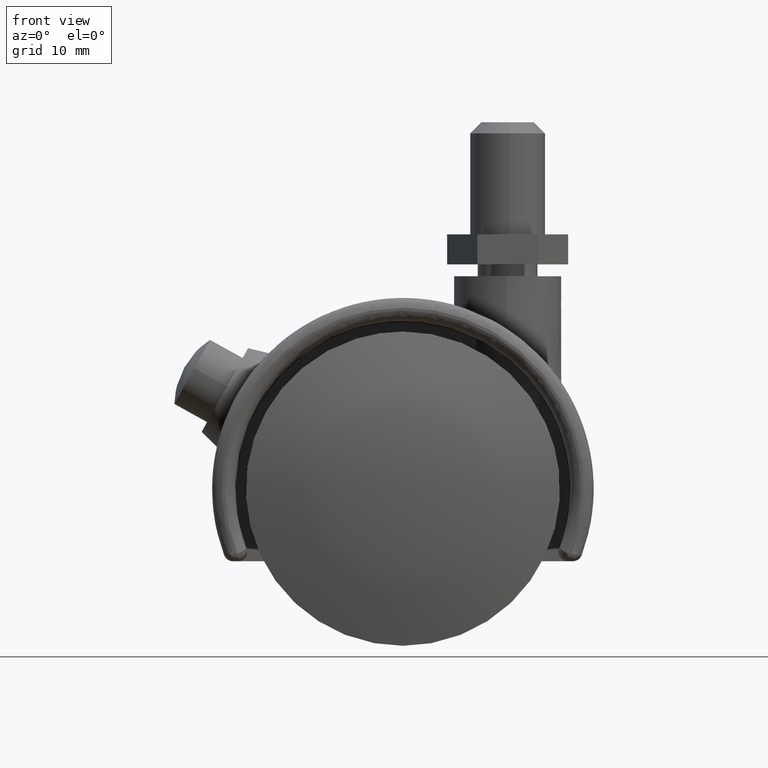
[diagram: clean part render]
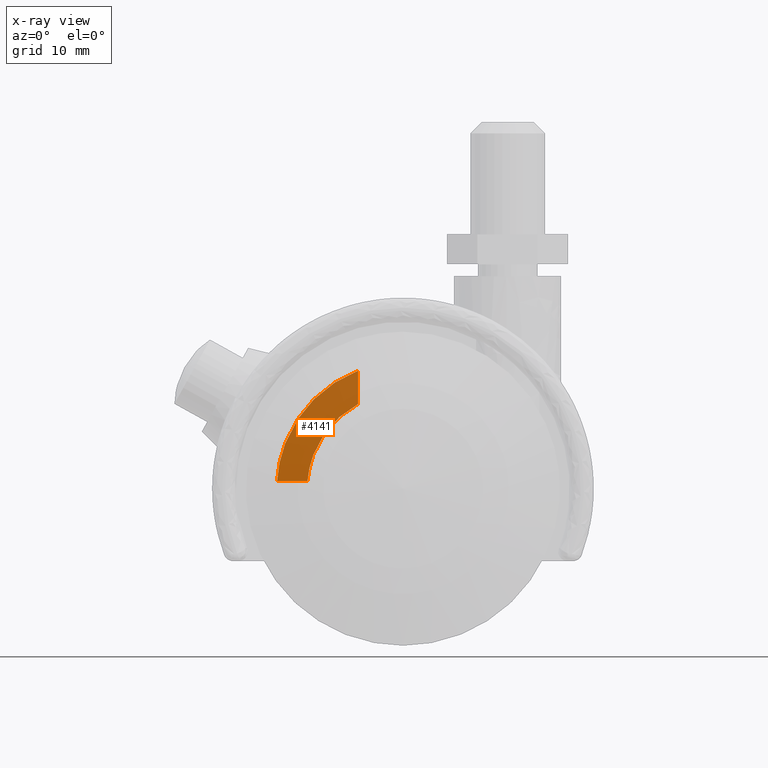
[diagram: x-ray — body ghosted, one internal face saturated and labeled with its STEP entity id]
A machine part, front view, then the same camera in x-ray: the body is ghosted and one INTERNAL B-rep face — a face not visible from any outside direction — is saturated and labeled: STEP entity #4141.
In plain terms, the highlighted face is a freeform B-spline surface patch.
Its self-contained STEP definition (entity closure, byte-faithful):
#3520=CARTESIAN_POINT('',(-6.0,6.500000000000000,11.306637484239340));
#3521=VERTEX_POINT('',#3520);
#3522=CARTESIAN_POINT('',(-12.760879718891101,6.500000000000000,1.000000000000012));
#3523=VERTEX_POINT('',#3522);
#3524=CARTESIAN_POINT('',(-6.000000000000006,6.500000000000000,11.306637484239360));
#3525=CARTESIAN_POINT('',(-12.211511158425301,6.500000000000001,8.010426121444519));
#3526=CARTESIAN_POINT('',(-12.760879718891109,6.500000000000000,1.000000000000013));
#3534=(BOUNDED_CURVE()B_SPLINE_CURVE(2,(#3524,#3525,#3526),.UNSPECIFIED.,.F.,.U.)CURVE()GEOMETRIC_REPRESENTATION_ITEM()QUASI_UNIFORM_CURVE()RATIONAL_B_SPLINE_CURVE((1.0,0.876449497537338,1.0))REPRESENTATION_ITEM(''));
#3535=EDGE_CURVE('',#3521,#3523,#3534,.T.);
#3872=CARTESIAN_POINT('',(-16.824806175168849,6.500000000000000,1.0));
#3873=VERTEX_POINT('',#3872);
#3904=CARTESIAN_POINT('',(-12.760879718891101,6.500000000000000,1.000000000000012));
#3905=CARTESIAN_POINT('',(-16.824806175168849,6.500000000000000,1.0));
#3906=QUASI_UNIFORM_CURVE('',1,(#3904,#3905),.UNSPECIFIED.,.F.,.U.);
#3907=EDGE_CURVE('',#3523,#3873,#3906,.T.);
#4045=CARTESIAN_POINT('',(-6.0,6.500000000000000,15.750368339565901));
#4046=VERTEX_POINT('',#4045);
#4047=CARTESIAN_POINT('',(-6.0,6.500000000000000,11.306637484239340));
#4048=CARTESIAN_POINT('',(-6.0,6.500000000000000,15.750368339565901));
#4049=QUASI_UNIFORM_CURVE('',1,(#4047,#4048),.UNSPECIFIED.,.F.,.U.);
#4050=EDGE_CURVE('',#3521,#4046,#4049,.T.);
#4074=CARTESIAN_POINT('',(-6.000000000000007,6.500000000000000,15.750368339565920));
#4075=CARTESIAN_POINT('',(-16.178563301237570,6.500000000000000,11.872911095978138));
#4076=CARTESIAN_POINT('',(-16.824806175168870,6.500000000000000,1.0));
#4084=(BOUNDED_CURVE()B_SPLINE_CURVE(2,(#4074,#4075,#4076),.UNSPECIFIED.,.F.,.U.)CURVE()GEOMETRIC_REPRESENTATION_ITEM()QUASI_UNIFORM_CURVE()RATIONAL_B_SPLINE_CURVE((1.0,0.839882582692310,1.0))REPRESENTATION_ITEM(''));
#4085=EDGE_CURVE('',#4046,#3873,#4084,.T.);
#4130=CARTESIAN_POINT('',(-17.365505324253501,6.500000000000000,0.263219182726437));
#4131=CARTESIAN_POINT('',(-5.459300657352735,6.500000000000000,0.263219182726437));
#4132=CARTESIAN_POINT('',(-17.365505324253501,6.500000000000000,16.487148497446618));
#4133=CARTESIAN_POINT('',(-5.459300657352735,6.500000000000000,16.487148497446618));
#4134=B_SPLINE_SURFACE_WITH_KNOTS('',1,1,((#4130,#4132),(#4131,#4133)),.UNSPECIFIED.,.F.,.F.,.U.,(2,2),(2,2),(0.0,11.906204666900759),(0.0,16.223929314720181),.UNSPECIFIED.);
#4135=ORIENTED_EDGE('',*,*,#3535,.T.);
#4136=ORIENTED_EDGE('',*,*,#3907,.T.);
#4137=ORIENTED_EDGE('',*,*,#4085,.F.);
#4138=ORIENTED_EDGE('',*,*,#4050,.F.);
#4139=EDGE_LOOP('',(#4135,#4136,#4137,#4138));
#4140=FACE_OUTER_BOUND('',#4139,.T.);
#4141=ADVANCED_FACE('',(#4140),#4134,.F.);